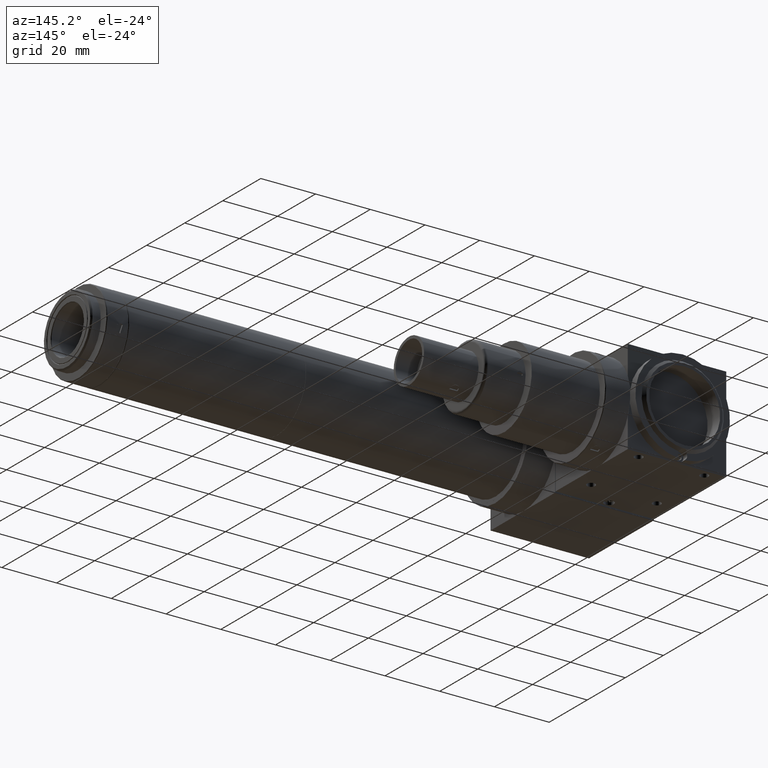
[diagram: clean part render]
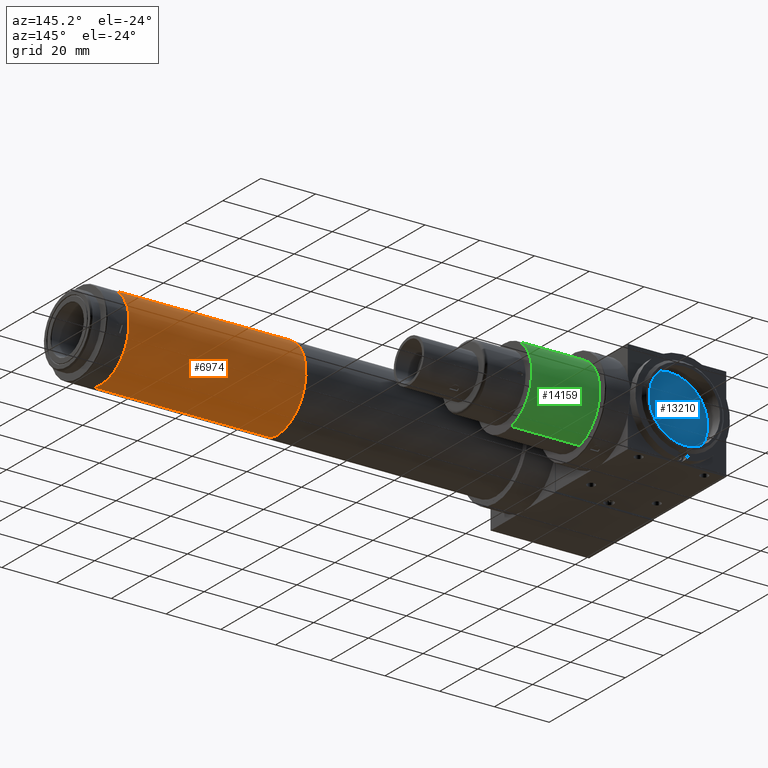
[diagram: same view with three faces highlighted in distinct colors, each labeled with its STEP entity id]
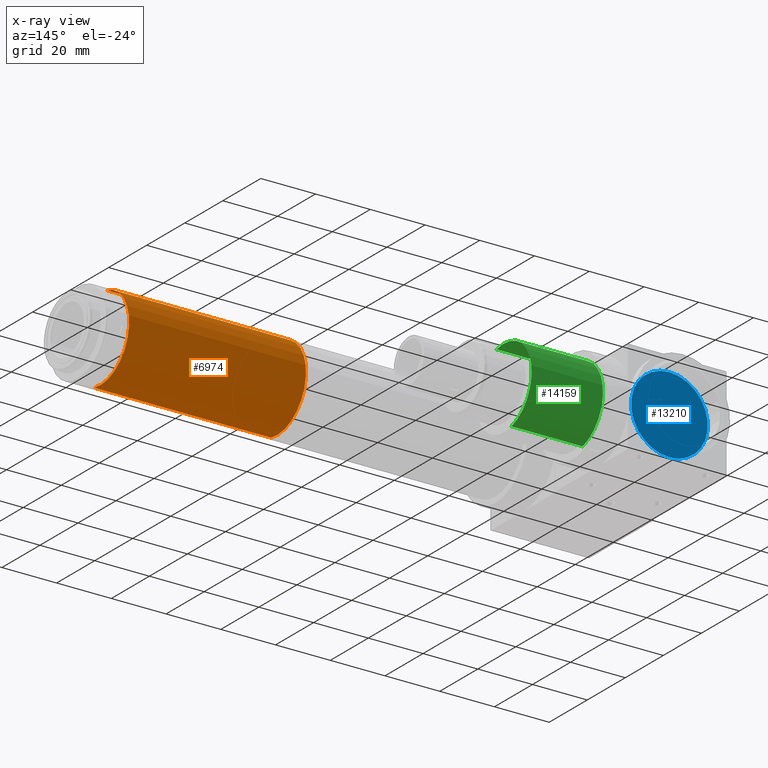
[diagram: x-ray of the same camera — body ghosted, the three highlighted faces saturated]
A machine part, auxiliary view with three faces highlighted in distinct colors.
The next image is the same camera in x-ray (body ghosted, the three faces saturated) — at least one of them is partly hidden behind the body in this view.
Their STEP definitions:

[orange] entity #6974 — the highlighted cylindrical surface (partial cylindrical patch) has radius 15.2 mm, axis along (-1, 0, 0).
#648 = ORIENTED_EDGE ( 'NONE', *, *, #5376, .T. ) ;
#888 = CYLINDRICAL_SURFACE ( 'NONE', #1071, 15.20000000000280060 ) ;
#987 = VECTOR ( 'NONE', #5147, 1000.000000000000000 ) ;
#1071 = AXIS2_PLACEMENT_3D ( 'NONE', #11827, #2312, #5706 ) ;
#1244 = CARTESIAN_POINT ( 'NONE',  ( 0.000000000000000000, 1.861463134704319852E-15, -15.20000000000280060 ) ) ;
#1297 = CARTESIAN_POINT ( 'NONE',  ( 70.02712709704320559, 1.861463134704319852E-15, -15.20000000000280060 ) ) ;
#1541 = VECTOR ( 'NONE', #4956, 1000.000000000000000 ) ;
#1804 = EDGE_CURVE ( 'NONE', #10155, #15028, #5305, .T. ) ;
#2300 = CARTESIAN_POINT ( 'NONE',  ( 70.02712709704320559, 0.000000000000000000, 0.000000000000000000 ) ) ;
#2312 = DIRECTION ( 'NONE',  ( -1.000000000000000000, 0.000000000000000000, 0.000000000000000000 ) ) ;
#4377 = EDGE_CURVE ( 'NONE', #12807, #7525, #12024, .T. ) ;
#4956 = DIRECTION ( 'NONE',  ( -1.000000000000000000, 0.000000000000000000, 0.000000000000000000 ) ) ;
#5147 = DIRECTION ( 'NONE',  ( -1.000000000000000000, 0.000000000000000000, 0.000000000000000000 ) ) ;
#5305 = LINE ( 'NONE', #11271, #987 ) ;
#5376 = EDGE_CURVE ( 'NONE', #7525, #15028, #14879, .T. ) ;
#5706 = DIRECTION ( 'NONE',  ( 0.000000000000000000, 0.000000000000000000, 1.000000000000000000 ) ) ;
#6086 = AXIS2_PLACEMENT_3D ( 'NONE', #9141, #10161, #11490 ) ;
#6974 = ADVANCED_FACE ( 'NONE', ( #13246 ), #888, .T. ) ;
#7525 = VERTEX_POINT ( 'NONE', #11806 ) ;
#8285 = DIRECTION ( 'NONE',  ( 0.000000000000000000, 0.000000000000000000, 1.000000000000000000 ) ) ;
#8745 = ORIENTED_EDGE ( 'NONE', *, *, #10173, .T. ) ;
#9141 = CARTESIAN_POINT ( 'NONE',  ( 5.426303418553319879, 0.000000000000000000, 0.000000000000000000 ) ) ;
#10155 = VERTEX_POINT ( 'NONE', #13072 ) ;
#10161 = DIRECTION ( 'NONE',  ( 1.000000000000000000, 0.000000000000000000, 0.000000000000000000 ) ) ;
#10173 = EDGE_CURVE ( 'NONE', #10155, #12807, #14704, .T. ) ;
#10417 = ORIENTED_EDGE ( 'NONE', *, *, #4377, .T. ) ;
#11271 = CARTESIAN_POINT ( 'NONE',  ( 0.000000000000000000, 0.000000000000000000, 15.20000000000280060 ) ) ;
#11490 = DIRECTION ( 'NONE',  ( 0.000000000000000000, 0.000000000000000000, 1.000000000000000000 ) ) ;
#11806 = CARTESIAN_POINT ( 'NONE',  ( 5.426303418553319879, 1.861463134704319852E-15, -15.20000000000280060 ) ) ;
#11827 = CARTESIAN_POINT ( 'NONE',  ( 0.000000000000000000, 0.000000000000000000, 0.000000000000000000 ) ) ;
#12024 = LINE ( 'NONE', #1244, #1541 ) ;
#12807 = VERTEX_POINT ( 'NONE', #1297 ) ;
#13072 = CARTESIAN_POINT ( 'NONE',  ( 70.02712709704320559, 0.000000000000000000, 15.20000000000280060 ) ) ;
#13246 = FACE_OUTER_BOUND ( 'NONE', #15526, .T. ) ;
#13260 = ORIENTED_EDGE ( 'NONE', *, *, #1804, .F. ) ;
#14381 = CARTESIAN_POINT ( 'NONE',  ( 5.426303418553319879, 0.000000000000000000, 15.20000000000280060 ) ) ;
#14704 = CIRCLE ( 'NONE', #15204, 15.20000000000280060 ) ;
#14879 = CIRCLE ( 'NONE', #6086, 15.20000000000280060 ) ;
#15028 = VERTEX_POINT ( 'NONE', #14381 ) ;
#15204 = AXIS2_PLACEMENT_3D ( 'NONE', #2300, #15442, #8285 ) ;
#15442 = DIRECTION ( 'NONE',  ( -1.000000000000000000, 0.000000000000000000, 0.000000000000000000 ) ) ;
#15526 = EDGE_LOOP ( 'NONE', ( #8745, #10417, #648, #13260 ) ) ;

[blue] entity #13210 — the highlighted planar face has unit normal (0, 1, 0).
#587 = DIRECTION ( 'NONE',  ( 0.000000000000000000, 0.000000000000000000, 1.000000000000000000 ) ) ;
#1112 = VERTEX_POINT ( 'NONE', #12205 ) ;
#2496 = AXIS2_PLACEMENT_3D ( 'NONE', #6431, #587, #7926 ) ;
#4443 = CARTESIAN_POINT ( 'NONE',  ( 0.000000000000000000, 0.000000000000000000, 33.91000000000000369 ) ) ;
#4860 = EDGE_CURVE ( 'NONE', #1112, #12439, #7075, .T. ) ;
#5024 = CARTESIAN_POINT ( 'NONE',  ( -14.00000000000000000, 1.714505518806294638E-15, 33.91000000000000369 ) ) ;
#6036 = CARTESIAN_POINT ( 'NONE',  ( 0.000000000000000000, 0.000000000000000000, 33.91000000000000369 ) ) ;
#6431 = CARTESIAN_POINT ( 'NONE',  ( 0.000000000000000000, 0.000000000000000000, 33.91000000000000369 ) ) ;
#7075 = CIRCLE ( 'NONE', #13353, 14.00000000000000000 ) ;
#7217 = DIRECTION ( 'NONE',  ( 0.000000000000000000, 0.000000000000000000, 1.000000000000000000 ) ) ;
#7460 = DIRECTION ( 'NONE',  ( 1.000000000000000000, 0.000000000000000000, 0.000000000000000000 ) ) ;
#7926 = DIRECTION ( 'NONE',  ( 1.000000000000000000, 0.000000000000000000, 0.000000000000000000 ) ) ;
#8144 = DIRECTION ( 'NONE',  ( 0.000000000000000000, 0.000000000000000000, 1.000000000000000000 ) ) ;
#9164 = PLANE ( 'NONE',  #15203 ) ;
#9281 = CIRCLE ( 'NONE', #2496, 14.00000000000000000 ) ;
#9424 = ORIENTED_EDGE ( 'NONE', *, *, #4860, .T. ) ;
#9861 = ORIENTED_EDGE ( 'NONE', *, *, #12449, .T. ) ;
#10565 = DIRECTION ( 'NONE',  ( 1.000000000000000000, 0.000000000000000000, 0.000000000000000000 ) ) ;
#11799 = EDGE_LOOP ( 'NONE', ( #9424, #9861 ) ) ;
#12205 = CARTESIAN_POINT ( 'NONE',  ( 14.00000000000000000, 0.000000000000000000, 33.91000000000000369 ) ) ;
#12439 = VERTEX_POINT ( 'NONE', #5024 ) ;
#12449 = EDGE_CURVE ( 'NONE', #12439, #1112, #9281, .T. ) ;
#13210 = ADVANCED_FACE ( 'NONE', ( #13886 ), #9164, .T. ) ;
#13353 = AXIS2_PLACEMENT_3D ( 'NONE', #6036, #7217, #7460 ) ;
#13886 = FACE_OUTER_BOUND ( 'NONE', #11799, .T. ) ;
#15203 = AXIS2_PLACEMENT_3D ( 'NONE', #4443, #8144, #10565 ) ;

[green] entity #14159 — the highlighted cylindrical surface (partial cylindrical patch) has radius 14.6 mm, axis along (1, 0, -0).
#643 = DIRECTION ( 'NONE',  ( 1.000000000000000000, 0.000000000000000000, 0.000000000000000000 ) ) ;
#1172 = ORIENTED_EDGE ( 'NONE', *, *, #2189, .T. ) ;
#1281 = VECTOR ( 'NONE', #643, 1000.000000000000000 ) ;
#1487 = ORIENTED_EDGE ( 'NONE', *, *, #10352, .T. ) ;
#1605 = DIRECTION ( 'NONE',  ( 1.000000000000000000, 0.000000000000000000, 0.000000000000000000 ) ) ;
#2189 = EDGE_CURVE ( 'NONE', #9474, #12305, #10075, .T. ) ;
#2271 = AXIS2_PLACEMENT_3D ( 'NONE', #15018, #6672, #5417 ) ;
#4559 = CARTESIAN_POINT ( 'NONE',  ( 45.07183224897290330, 0.004213562322163970537, 0.000000000000000000 ) ) ;
#4967 = EDGE_CURVE ( 'NONE', #12305, #8376, #7829, .T. ) ;
#5061 = EDGE_LOOP ( 'NONE', ( #15345, #1172, #5958, #1487 ) ) ;
#5417 = DIRECTION ( 'NONE',  ( 0.000000000000000000, 0.000000000000000000, -1.000000000000000000 ) ) ;
#5662 = CIRCLE ( 'NONE', #13698, 14.60000000001750031 ) ;
#5958 = ORIENTED_EDGE ( 'NONE', *, *, #4967, .T. ) ;
#6113 = CARTESIAN_POINT ( 'NONE',  ( 45.07183224897290330, 0.004213562322165758170, 14.60000000001750031 ) ) ;
#6401 = CARTESIAN_POINT ( 'NONE',  ( 38.92183224897279814, 0.004213562322165758170, 14.60000000001750031 ) ) ;
#6672 = DIRECTION ( 'NONE',  ( 1.000000000000000000, 0.000000000000000000, 0.000000000000000000 ) ) ;
#7011 = VERTEX_POINT ( 'NONE', #6401 ) ;
#7306 = CARTESIAN_POINT ( 'NONE',  ( 12.88960083403090096, 0.004213562322163970537, -14.60000000001750031 ) ) ;
#7829 = LINE ( 'NONE', #11429, #1281 ) ;
#8113 = DIRECTION ( 'NONE',  ( 0.000000000000000000, 0.000000000000000000, -1.000000000000000000 ) ) ;
#8260 = DIRECTION ( 'NONE',  ( 0.000000000000000000, 0.000000000000000000, -1.000000000000000000 ) ) ;
#8376 = VERTEX_POINT ( 'NONE', #14200 ) ;
#8477 = VECTOR ( 'NONE', #1605, 1000.000000000000000 ) ;
#9136 = DIRECTION ( 'NONE',  ( -1.000000000000000000, 0.000000000000000000, 0.000000000000000000 ) ) ;
#9474 = VERTEX_POINT ( 'NONE', #11319 ) ;
#9656 = LINE ( 'NONE', #6113, #8477 ) ;
#10075 = CIRCLE ( 'NONE', #2271, 14.60000000001750031 ) ;
#10352 = EDGE_CURVE ( 'NONE', #8376, #7011, #5662, .T. ) ;
#10535 = CARTESIAN_POINT ( 'NONE',  ( 38.92183224897279814, 0.004213562322163970537, 0.000000000000000000 ) ) ;
#10607 = DIRECTION ( 'NONE',  ( 1.000000000000000000, 0.000000000000000000, 0.000000000000000000 ) ) ;
#11319 = CARTESIAN_POINT ( 'NONE',  ( 12.88960083403090096, 0.004213562322165758170, 14.60000000001750031 ) ) ;
#11429 = CARTESIAN_POINT ( 'NONE',  ( 45.07183224897290330, 0.004213562322163970537, -14.60000000001750031 ) ) ;
#11707 = AXIS2_PLACEMENT_3D ( 'NONE', #4559, #10607, #8260 ) ;
#12098 = FACE_OUTER_BOUND ( 'NONE', #5061, .T. ) ;
#12305 = VERTEX_POINT ( 'NONE', #7306 ) ;
#13698 = AXIS2_PLACEMENT_3D ( 'NONE', #10535, #9136, #8113 ) ;
#14159 = ADVANCED_FACE ( 'NONE', ( #12098 ), #15343, .T. ) ;
#14200 = CARTESIAN_POINT ( 'NONE',  ( 38.92183224897279814, 0.004213562322163970537, -14.60000000001750031 ) ) ;
#15018 = CARTESIAN_POINT ( 'NONE',  ( 12.88960083403090096, 0.004213562322163970537, 0.000000000000000000 ) ) ;
#15035 = EDGE_CURVE ( 'NONE', #9474, #7011, #9656, .T. ) ;
#15343 = CYLINDRICAL_SURFACE ( 'NONE', #11707, 14.60000000001750031 ) ;
#15345 = ORIENTED_EDGE ( 'NONE', *, *, #15035, .F. ) ;